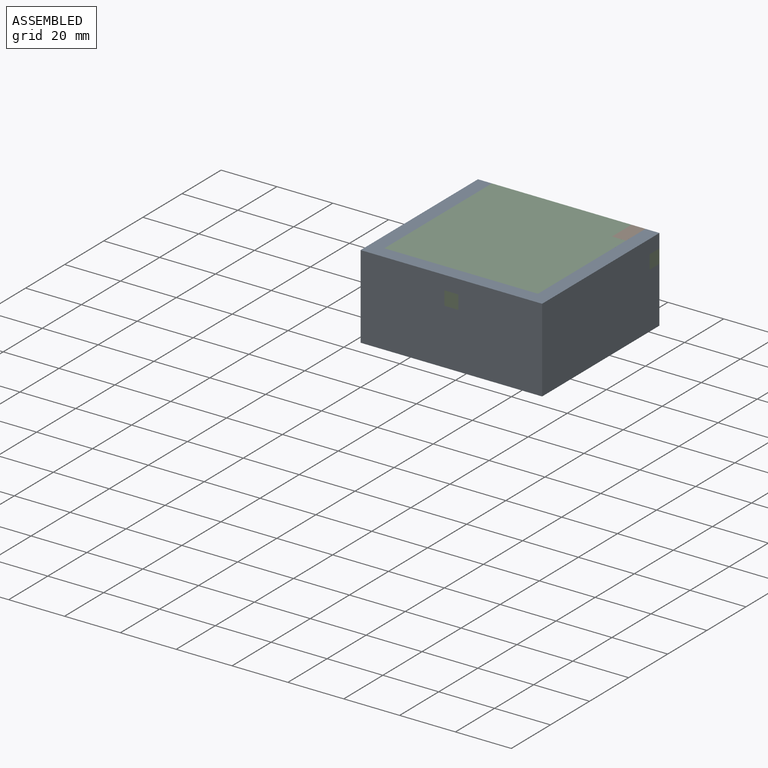
[diagram: assembled view]
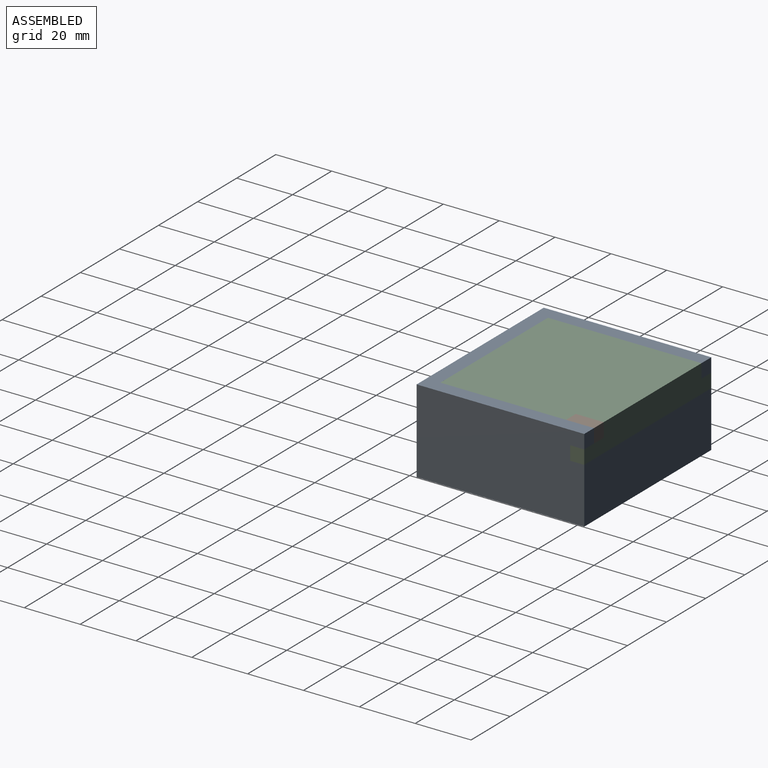
[diagram: assembled view, second angle]
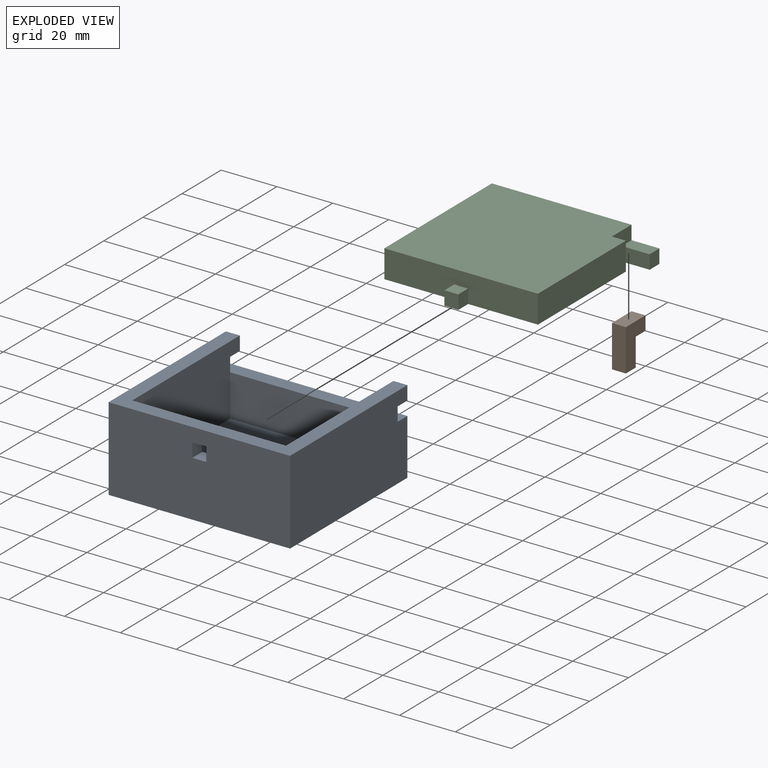
[diagram: exploded view]
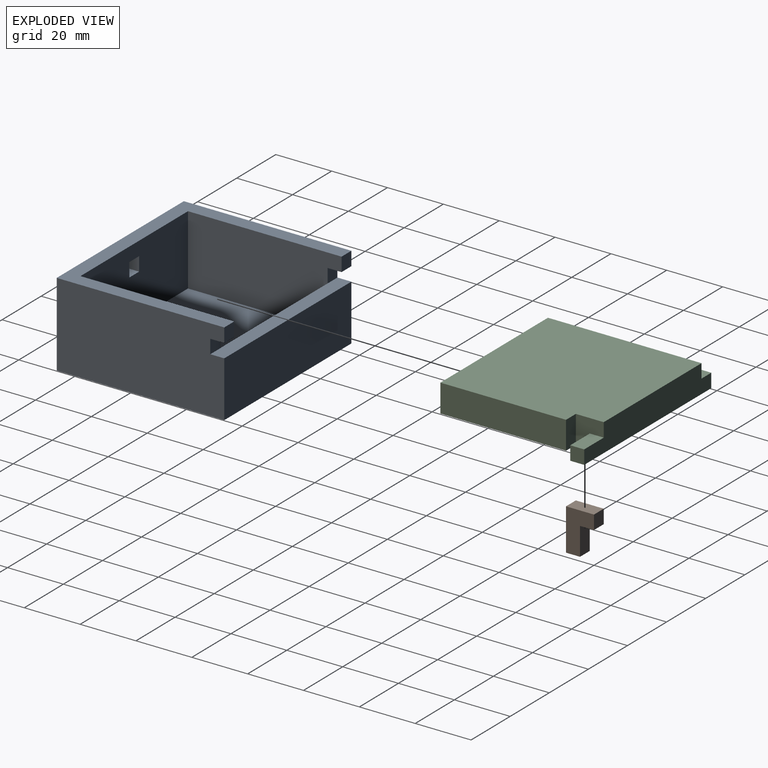
[diagram: exploded view, second angle]
ASSEMBLY  parts=3 mates=2
PART A: 22 faces, bbox 65x60x30 mm
  f0: plane 65x20mm, normal (0,1,0), area 1300mm2, adj f3,f5,f11,f14
  f1: plane 5x5mm, normal (0,1,0), area 25mm2, adj f3,f4,f8,f15
  f2: plane 5x5mm, normal (0,1,0), area 25mm2, adj f4,f6,f11,f16
  f3: plane 60x30mm, normal (-1,0,0), area 1775mm2, adj f0,f1,f4,f5,f10,f14,f15,f17
  f4: plane 65x60mm, normal (0,0,1), area 875mm2, adj f1,f2,f3,f6,f8,f9,f10,f11
  f5: plane 65x60mm, normal (0,0,-1), area 3900mm2, adj f0,f3,f10,f11
  f6: plane 55x25mm, normal (-1,0,0), area 1275mm2, adj f2,f4,f7,f9,f12,f13,f16
  f7: plane 55x15mm, normal (0,-1,0), area 825mm2, adj f6,f8,f12,f14
  f8: plane 55x25mm, normal (1,0,0), area 1275mm2, adj f1,f4,f7,f9,f12,f15,f17
  f9: plane 55x25mm, normal (0,1,0), area 1350mm2, adj f4,f6,f8,f12,f18,f19,f20,f21
  f10: plane 65x30mm, normal (0,-1,0), area 1925mm2, adj f3,f4,f5,f11,f18,f19,f20,f21
  f11: plane 60x30mm, normal (1,0,0), area 1775mm2, adj f0,f2,f4,f5,f10,f13,f14,f16
  f12: plane 55x50mm, normal (0,0,1), area 2750mm2, adj f6,f7,f8,f9
  f13: plane 5x5mm, normal (0,1,0), area 25mm2, adj f6,f11,f14,f16
  f14: plane 65x5mm, normal (0,0,1), area 325mm2, adj f0,f3,f7,f11,f13,f17
  f15: plane 5x5mm, normal (0,0,-1), area 25mm2, adj f1,f3,f8,f17
  f16: plane 5x5mm, normal (0,0,-1), area 25mm2, adj f2,f6,f11,f13
  f17: plane 5x5mm, normal (0,1,0), area 25mm2, adj f3,f8,f14,f15
  f18: plane 5x5mm, normal (0,0,1), area 25mm2, adj f9,f10,f19,f20
  f19: plane 5x5mm, normal (1,0,0), area 25mm2, adj f9,f10,f18,f21
  f20: plane 5x5mm, normal (-1,0,0), area 25mm2, adj f9,f10,f18,f21
  f21: plane 5x5mm, normal (0,0,-1), area 25mm2, adj f9,f10,f19,f20
PART B: 8 faces, bbox 15x10x5 mm
  f0: plane 10x5mm, normal (-1,0,0), area 50mm2, adj f1,f5,f6,f7
  f1: plane 15x5mm, normal (0,-1,0), area 75mm2, adj f0,f2,f6,f7
  f2: plane 5x5mm, normal (1,0,0), area 25mm2, adj f1,f3,f6,f7
  f3: plane 10x5mm, normal (0,1,0), area 50mm2, adj f2,f4,f6,f7
  f4: plane 5x5mm, normal (1,0,0), area 25mm2, adj f3,f5,f6,f7
  f5: plane 5x5mm, normal (0,1,0), area 25mm2, adj f0,f4,f6,f7
  f6: plane 15x10mm, normal (0,0,1), area 100mm2, adj f0,f1,f2,f3,f4,f5
  f7: plane 15x10mm, normal (0,0,-1), area 100mm2, adj f0,f1,f2,f3,f4,f5
PART C: 25 faces, bbox 65x60x10 mm
  f0: plane 55x10mm, normal (0,-1,0), area 525mm2, adj f2,f3,f6,f7,f15,f17,f18
  f1: plane 65x10mm, normal (0,1,0), area 575mm2, adj f2,f5,f6,f7,f19,f21,f23,f24
  f2: plane 55x10mm, normal (-1,0,0), area 525mm2, adj f0,f1,f6,f7,f20,f21
  f3: plane 45x10mm, normal (1,0,0), area 450mm2, adj f0,f4,f6,f7
  f4: plane 10x5mm, normal (0,1,0), area 50mm2, adj f3,f5,f6,f7
  f5: plane 10x10mm, normal (1,0,0), area 75mm2, adj f1,f4,f6,f7,f22,f24
  f6: plane 55x55mm, normal (0,0,1), area 2975mm2, adj f0,f1,f2,f3,f4,f5
  f7: plane 65x60mm, normal (0,0,-1), area 1100mm2, adj f0,f1,f2,f3,f4,f5,f8,f9
  f8: plane 10x5mm, normal (-1,0,0), area 50mm2, adj f7,f9,f13,f14
  f9: plane 40x5mm, normal (0,-1,0), area 200mm2, adj f7,f8,f10,f14
  f10: plane 45x5mm, normal (1,0,0), area 225mm2, adj f7,f9,f11,f14
  f11: plane 45x5mm, normal (0,1,0), area 225mm2, adj f7,f10,f12,f14
  f12: plane 35x5mm, normal (-1,0,0), area 175mm2, adj f7,f11,f13,f14
  f13: plane 5x5mm, normal (0,-1,0), area 25mm2, adj f7,f8,f12,f14
  f14: plane 45x45mm, normal (0,0,-1), area 1975mm2, adj f8,f9,f10,f11,f12,f13
  f15: plane 5x5mm, normal (-1,0,0), area 25mm2, adj f0,f7,f16,f18
  f16: plane 5x5mm, normal (0,-1,0), area 25mm2, adj f7,f15,f17,f18
  f17: plane 5x5mm, normal (1,0,0), area 25mm2, adj f0,f7,f16,f18
  f18: plane 5x5mm, normal (0,0,1), area 25mm2, adj f0,f15,f16,f17
  f19: plane 5x5mm, normal (-1,0,0), area 25mm2, adj f1,f7,f20,f21
  f20: plane 5x5mm, normal (0,-1,0), area 25mm2, adj f2,f7,f19,f21
  f21: plane 5x5mm, normal (0,0,1), area 25mm2, adj f1,f2,f19,f20
  f22: plane 10x5mm, normal (0,-1,0), area 50mm2, adj f5,f7,f23,f24
  f23: plane 5x5mm, normal (1,0,0), area 25mm2, adj f1,f7,f22,f24
  f24: plane 10x5mm, normal (0,0,1), area 50mm2, adj f1,f5,f22,f23
PLACE A at identity
PLACE B rot(axis=(0,1,0),90deg) t=(55,72.89,24.01)mm
PLACE C t=(71.03,65.5,20)mm
MATE slider B.f0 <-> C.f6  axis (0,0,-1) through (60,50,30)mm
MATE slider C.f1 <-> A.f1  axis (0,-1,0) through (5,60,30)mm
